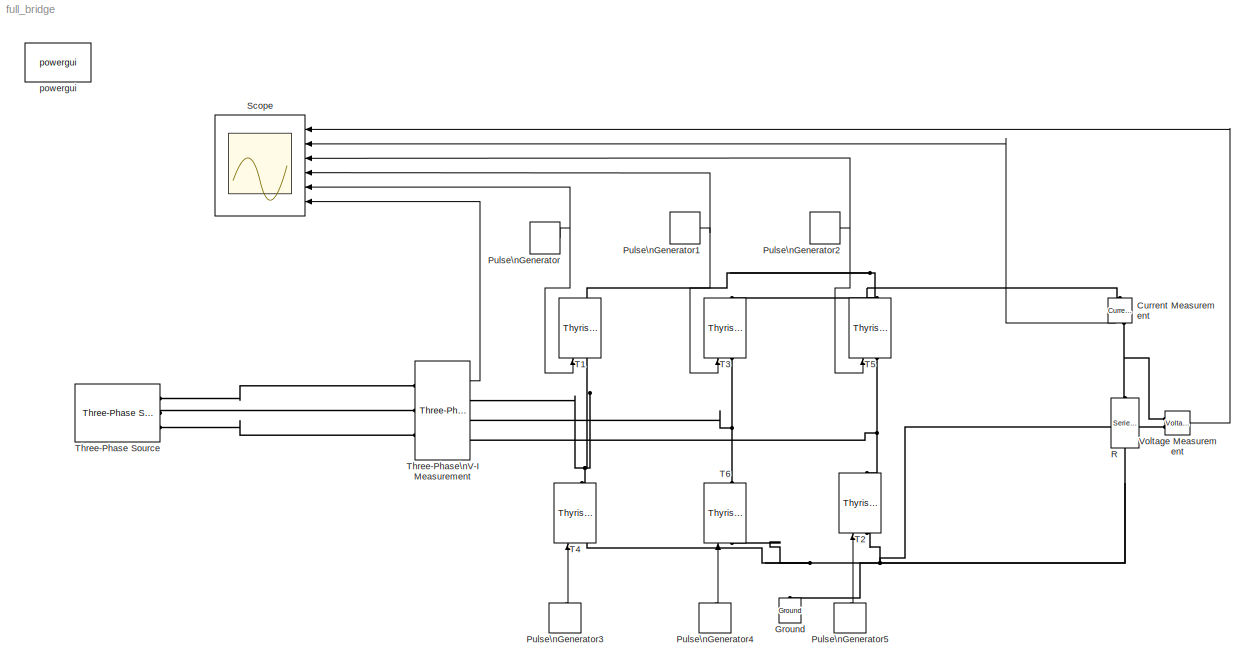
MODEL full_bridge
KIND model
BLOCK [Reference] Current Measurement  REF=powerlib/Measurements/Current Measurement
  DialogController = POWERSYS.PowerSysDialog
  FunctionWithSeparateData = off
  OutputType = Complex
  PSBequivalent = 0
  PhasorSimulation = off
  Ports = [0, 1, 0, 0, 0, 1, 1]
  RTWMemSecDataConstants = Inherit from model
  RTWMemSecDataInternal = Inherit from model
  RTWMemSecDataParameters = Inherit from model
  RTWMemSecFuncExecute = Inherit from model
  RTWMemSecFuncInitTerm = Inherit from model
  SID = 11
  ShowPortLabels = FromPortIcon
  SourceBlock = powerlib/Measurements/Current Measurement
  SourceType = Current Measurement
  SystemSampleTime = -1
BLOCK [Reference] Ground  REF=powerlib/Elements/Ground
  DialogController = POWERSYS.PowerSysDialog
  LConnTagsString = a
  LeftPortType = p1
  PhysicalDomain = powersysdomain
  Ports = [0, 0, 0, 0, 0, 1]
  RightPortType = p1
  SID = 49
  SourceBlock = powerlib/Elements/Ground
  SourceType = Ground
  SubClassName = unknown
BLOCK [DiscretePulseGenerator] Pulse\nGenerator
  Amplitude = 1
  Period = 0.02
  PhaseDelay = 0.00666
  Ports = [0, 1]
  PulseType = Time based
  PulseWidth = 5
  SID = 5
  SampleTime = 1
BLOCK [DiscretePulseGenerator] Pulse\nGenerator1
  Amplitude = 1
  Period = 0.02
  PhaseDelay = .013333
  Ports = [0, 1]
  PulseType = Time based
  PulseWidth = 5
  SID = 22
  SampleTime = 1
BLOCK [DiscretePulseGenerator] Pulse\nGenerator2
  Amplitude = 1
  Period = 0.02
  PhaseDelay = 0.02
  Ports = [0, 1]
  PulseType = Time based
  PulseWidth = 5
  SID = 23
  SampleTime = 1
BLOCK [DiscretePulseGenerator] Pulse\nGenerator3
  Amplitude = 1
  Period = 0.02
  PhaseDelay = 0.0166666
  Ports = [0, 1]
  PulseType = Time based
  PulseWidth = 5
  SID = 53
  SampleTime = 1
BLOCK [DiscretePulseGenerator] Pulse\nGenerator4
  Amplitude = 1
  Period = 0.02
  PhaseDelay = 0.02333
  Ports = [0, 1]
  PulseType = Time based
  PulseWidth = 5
  SID = 54
  SampleTime = 1
BLOCK [DiscretePulseGenerator] Pulse\nGenerator5
  Amplitude = 1
  Period = 0.02
  PhaseDelay = 0.01
  Ports = [0, 1]
  PulseType = Time based
  PulseWidth = 5
  SID = 55
  SampleTime = 1
BLOCK [Reference] R  REF=powerlib/Elements/Series RLC Branch
  AttributesFormatString = \\n
  BranchType = RL
  Capacitance = []
  DialogController = POWERSYS.PowerSysDialog
  Inductance = 10
  InitialCurrent = 0
  InitialVoltage = 0
  LConnTagsString = __new0
  LeftPortType = p1
  Measurements = None
  PhysicalDomain = powersysdomain
  Ports = [0, 0, 0, 0, 0, 1, 1]
  RConnTagsString = __new0
  Resistance = 100
  RightPortType = p1
  SID = 24
  SetiL0 = on
  Setx0 = off
  SourceBlock = powerlib/Elements/Series RLC Branch
  SourceType = Series RLC Branch
  SubClassName = unknown
BLOCK [Scope] Scope
  DataFormat = StructureWithTime
  Floating = off
  NumInputPorts = 6
  Ports = [6]
  SID = 47
  SampleTime = 0
  YMax = 5~5~5~5~5~5
  YMin = -5~-5~-5~-5~-5~-5
BLOCK [Reference] T1  REF=powerlib/Power\nElectronics/Thyristor
  Cs = 250e-9
  DialogController = POWERSYS.PowerSysDialog
  FunctionWithSeparateData = off
  IC = 0
  Lon = 0
  Measurements = on
  Ports = [1, 1, 0, 0, 0, 1, 1]
  RTWMemSecDataConstants = Inherit from model
  RTWMemSecDataInternal = Inherit from model
  RTWMemSecDataParameters = Inherit from model
  RTWMemSecFuncExecute = Inherit from model
  RTWMemSecFuncInitTerm = Inherit from model
  Ron = 0.001
  Rs = 500
  SID = 13
  ShowPortLabels = FromPortIcon
  SourceBlock = powerlib/Power\nElectronics/Thyristor
  SourceType = Thyristor
  SystemSampleTime = -1
  Vf = 0.8
BLOCK [Reference] T2  REF=powerlib/Power\nElectronics/Thyristor
  Cs = 250e-9
  DialogController = POWERSYS.PowerSysDialog
  FunctionWithSeparateData = off
  IC = 0
  Lon = 0
  Measurements = on
  Ports = [1, 1, 0, 0, 0, 1, 1]
  RTWMemSecDataConstants = Inherit from model
  RTWMemSecDataInternal = Inherit from model
  RTWMemSecDataParameters = Inherit from model
  RTWMemSecFuncExecute = Inherit from model
  RTWMemSecFuncInitTerm = Inherit from model
  Ron = 0.001
  Rs = 500
  SID = 52
  ShowPortLabels = FromPortIcon
  SourceBlock = powerlib/Power\nElectronics/Thyristor
  SourceType = Thyristor
  SystemSampleTime = -1
  Vf = 0.8
BLOCK [Reference] T3  REF=powerlib/Power\nElectronics/Thyristor
  Cs = 250e-9
  DialogController = POWERSYS.PowerSysDialog
  FunctionWithSeparateData = off
  IC = 0
  Lon = 0
  Measurements = on
  Ports = [1, 1, 0, 0, 0, 1, 1]
  RTWMemSecDataConstants = Inherit from model
  RTWMemSecDataInternal = Inherit from model
  RTWMemSecDataParameters = Inherit from model
  RTWMemSecFuncExecute = Inherit from model
  RTWMemSecFuncInitTerm = Inherit from model
  Ron = 0.001
  Rs = 500
  SID = 16
  ShowPortLabels = FromPortIcon
  SourceBlock = powerlib/Power\nElectronics/Thyristor
  SourceType = Thyristor
  SystemSampleTime = -1
  Vf = 0.8
BLOCK [Reference] T4  REF=powerlib/Power\nElectronics/Thyristor
  Cs = 250e-9
  DialogController = POWERSYS.PowerSysDialog
  FunctionWithSeparateData = off
  IC = 0
  Lon = 0
  Measurements = on
  Ports = [1, 1, 0, 0, 0, 1, 1]
  RTWMemSecDataConstants = Inherit from model
  RTWMemSecDataInternal = Inherit from model
  RTWMemSecDataParameters = Inherit from model
  RTWMemSecFuncExecute = Inherit from model
  RTWMemSecFuncInitTerm = Inherit from model
  Ron = 0.001
  Rs = 500
  SID = 50
  ShowPortLabels = FromPortIcon
  SourceBlock = powerlib/Power\nElectronics/Thyristor
  SourceType = Thyristor
  SystemSampleTime = -1
  Vf = 0.8
BLOCK [Reference] T5  REF=powerlib/Power\nElectronics/Thyristor
  Cs = 250e-9
  DialogController = POWERSYS.PowerSysDialog
  FunctionWithSeparateData = off
  IC = 0
  Lon = 0
  Measurements = on
  Ports = [1, 1, 0, 0, 0, 1, 1]
  RTWMemSecDataConstants = Inherit from model
  RTWMemSecDataInternal = Inherit from model
  RTWMemSecDataParameters = Inherit from model
  RTWMemSecFuncExecute = Inherit from model
  RTWMemSecFuncInitTerm = Inherit from model
  Ron = 0.001
  Rs = 500
  SID = 17
  ShowPortLabels = FromPortIcon
  SourceBlock = powerlib/Power\nElectronics/Thyristor
  SourceType = Thyristor
  SystemSampleTime = -1
  Vf = 0.8
BLOCK [Reference] T6  REF=powerlib/Power\nElectronics/Thyristor
  Cs = 250e-9
  DialogController = POWERSYS.PowerSysDialog
  FunctionWithSeparateData = off
  IC = 0
  Lon = 0
  Measurements = on
  Ports = [1, 1, 0, 0, 0, 1, 1]
  RTWMemSecDataConstants = Inherit from model
  RTWMemSecDataInternal = Inherit from model
  RTWMemSecDataParameters = Inherit from model
  RTWMemSecFuncExecute = Inherit from model
  RTWMemSecFuncInitTerm = Inherit from model
  Ron = 0.001
  Rs = 500
  SID = 51
  ShowPortLabels = FromPortIcon
  SourceBlock = powerlib/Power\nElectronics/Thyristor
  SourceType = Thyristor
  SystemSampleTime = -1
  Vf = 0.8
BLOCK [Reference] Three-Phase Source  REF=powerlib/Electrical\nSources/Three-Phase Source
  BaseVoltage = 25
  DialogController = POWERSYS.PowerSysDialog
  Frequency = 50
  FunctionWithSeparateData = off
  Inductance = 0
  InternalConnection = Yg
  PhaseAngle = 0
  Ports = [0, 0, 0, 0, 0, 0, 3]
  RTWMemSecDataConstants = Inherit from model
  RTWMemSecDataInternal = Inherit from model
  RTWMemSecDataParameters = Inherit from model
  RTWMemSecFuncExecute = Inherit from model
  RTWMemSecFuncInitTerm = Inherit from model
  Resistance = 0
  SID = 44
  ShortCircuitLevel = 100
  ShowPortLabels = FromPortIcon
  SourceBlock = powerlib/Electrical\nSources/Three-Phase Source
  SourceType = Three-Phase Source
  SpecifyImpedance = off
  SystemSampleTime = -1
  Voltage = 100
  XRratio = 7
BLOCK [Reference] Three-Phase\nV-I Measurement  REF=powerlib/Measurements/Three-Phase\nV-I Measurement
  CurrentMeasurement = no
  DialogController = POWERSYS.PowerSysDialog
  FunctionWithSeparateData = off
  Ipu = off
  LabelI = Iabc
  LabelV = Vabc
  OutputType = Complex
  PSBequivalent = 0
  Pbase = 100e6
  PhasorSimulation = off
  Ports = [0, 1, 0, 0, 0, 3, 3]
  RTWMemSecDataConstants = Inherit from model
  RTWMemSecDataInternal = Inherit from model
  RTWMemSecDataParameters = Inherit from model
  RTWMemSecFuncExecute = Inherit from model
  RTWMemSecFuncInitTerm = Inherit from model
  SID = 36
  SetLabelI = off
  SetLabelV = off
  ShowPortLabels = FromPortIcon
  SourceBlock = powerlib/Measurements/Three-Phase\nV-I Measurement
  SourceType = Three-Phase VI Measurement
  SystemSampleTime = -1
  Vbase = 500e3
  VoltageMeasurement = phase-to-ground
  Vpu = off
  VpuLL = off
BLOCK [Reference] Voltage Measurement  REF=powerlib/Measurements/Voltage Measurement
  DialogController = POWERSYS.PowerSysDialog
  FunctionWithSeparateData = off
  OutputType = Complex
  PSBequivalent = 0
  PhasorSimulation = off
  Ports = [0, 1, 0, 0, 0, 2]
  RTWMemSecDataConstants = Inherit from model
  RTWMemSecDataInternal = Inherit from model
  RTWMemSecDataParameters = Inherit from model
  RTWMemSecFuncExecute = Inherit from model
  RTWMemSecFuncInitTerm = Inherit from model
  SID = 10
  ShowPortLabels = FromPortIcon
  SourceBlock = powerlib/Measurements/Voltage Measurement
  SourceType = Voltage Measurement
  SystemSampleTime = -1
BLOCK [Reference] powergui  REF=powerlib/powergui
  DisableRonSwitches = off
  DisableSnubberDevices = off
  DisableVfSwitches = off
  DisplayEquations = off
  DisplayStyle = 1
  EnableUseOfTLC = off
  FreqAxis = off
  FunctionMessages = off
  FunctionWithSeparateData = off
  HookPort = off
  Interpol = off
  MaxFrequency = 1000
  Ports = []
  Priority = 1
  RTWMemSecDataConstants = Inherit from model
  RTWMemSecDataInternal = Inherit from model
  RTWMemSecDataParameters = Inherit from model
  RTWMemSecFuncExecute = Inherit from model
  RTWMemSecFuncInitTerm = Inherit from model
  ResistiveCurrentMeasurement = off
  RestoreLinks = warning
  SID = 14
  SPID = off
  SampleTime = 50e-6
  ShowGrid = off
  ShowPortLabels = FromPortIcon
  SourceBlock = powerlib/powergui
  SourceType = PSB option menu block
  StartTime = 0.0
  SwTol = 0
  SystemSampleTime = -1
  UserDataPersistent = on
  Xlog = on
  Ylog = off
  ZoomFFT = off
  cycles = 1
  display = off
  echomessages = off
  frequency = 60
  frequencyindice = 50
  frequencyindicesteady = 1
  methode = off
  save = off
  variable = ZData
  x0status = blocks
LINE Current Measurement:1 -> Scope:2
NET Pulse\nGenerator1:1 -> Scope:4, T3:1
NET Pulse\nGenerator2:1 -> Scope:3, T5:1
LINE Pulse\nGenerator3:1 -> T4:1
LINE Pulse\nGenerator4:1 -> T6:1
LINE Pulse\nGenerator5:1 -> T2:1
NET Pulse\nGenerator:1 -> Scope:5, T1:1
LINE Three-Phase\nV-I Measurement:1 -> Scope:6
LINE Voltage Measurement:1 -> Scope:1
PNET net1: Current Measurement:LConn1 -- T1:RConn1 -- T3:RConn1 -- T5:RConn1
PNET net2: Current Measurement:RConn1 -- R:LConn1 -- Voltage Measurement:LConn1
PNET net3: Ground:LConn1 -- R:RConn1 -- T2:LConn1 -- T4:LConn1 -- T6:LConn1 -- Voltage Measurement:LConn2
PNET net4: T1:LConn1 -- T4:RConn1 -- Three-Phase\nV-I Measurement:RConn1
PNET net5: T2:RConn1 -- T5:LConn1 -- Three-Phase\nV-I Measurement:RConn3
PNET net6: T3:LConn1 -- T6:RConn1 -- Three-Phase\nV-I Measurement:RConn2
PLINE Three-Phase Source:RConn1 -- Three-Phase\nV-I Measurement:LConn1
PLINE Three-Phase Source:RConn2 -- Three-Phase\nV-I Measurement:LConn2
PLINE Three-Phase Source:RConn3 -- Three-Phase\nV-I Measurement:LConn3
note: NET lines group one-source signal fan-out (src -> all destinations, sorted); 1:1 wires keep LINE; PNET lines group multi-terminal physical nets as a canonical sorted terminal list (undirected conserving connections); 2-terminal nets keep the pairwise PLINE form
